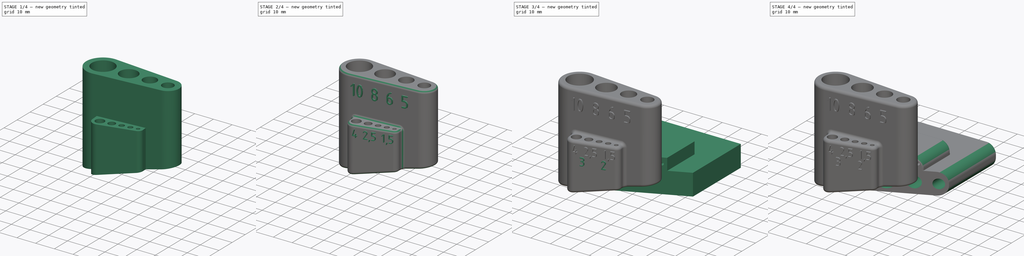
[diagram: build sequence overview — one tinted view per stage of 4, left to right]
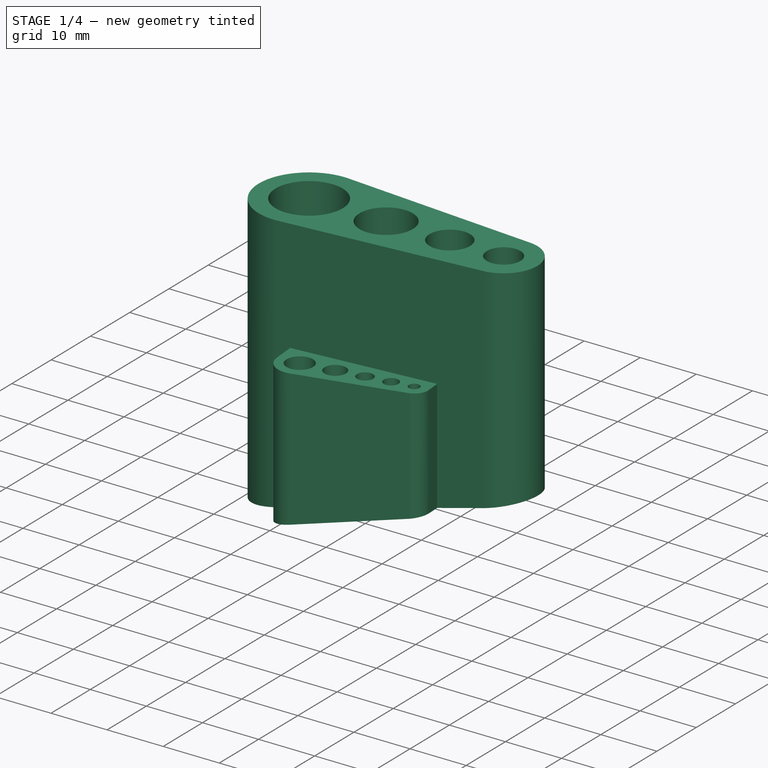
[diagram: stage 1 of 4 — iso view after this stage's code; geometry added in this stage tinted green]
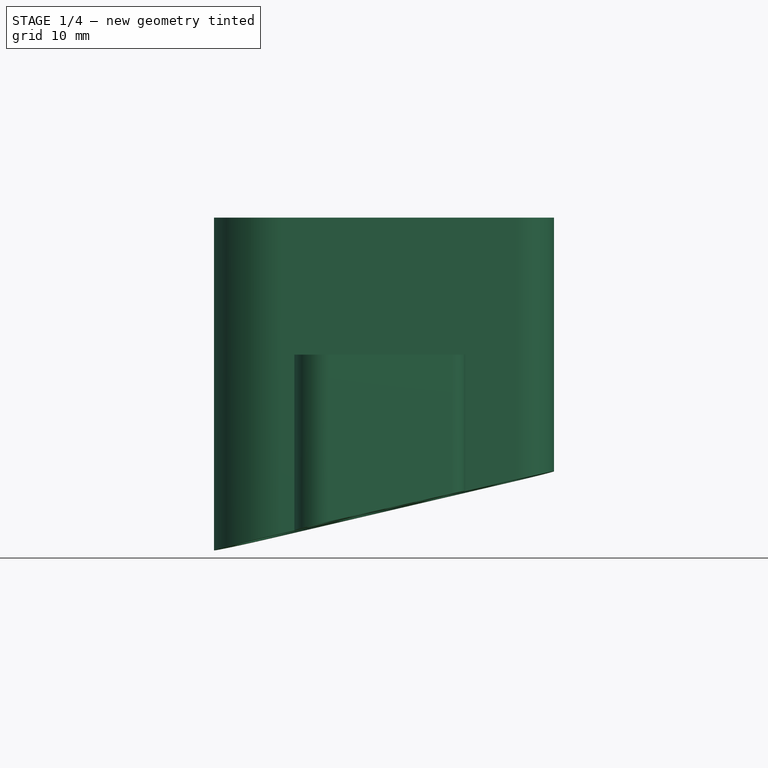
[diagram: stage 1 of 4 — front view after this stage's code; geometry added in this stage tinted green]
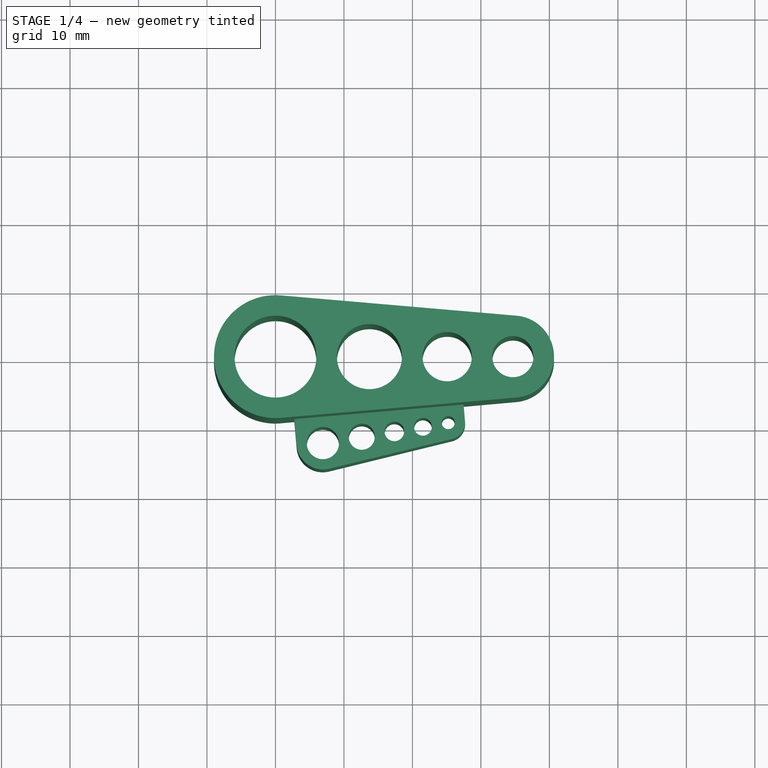
[diagram: stage 1 of 4 — top view after this stage's code; geometry added in this stage tinted green]
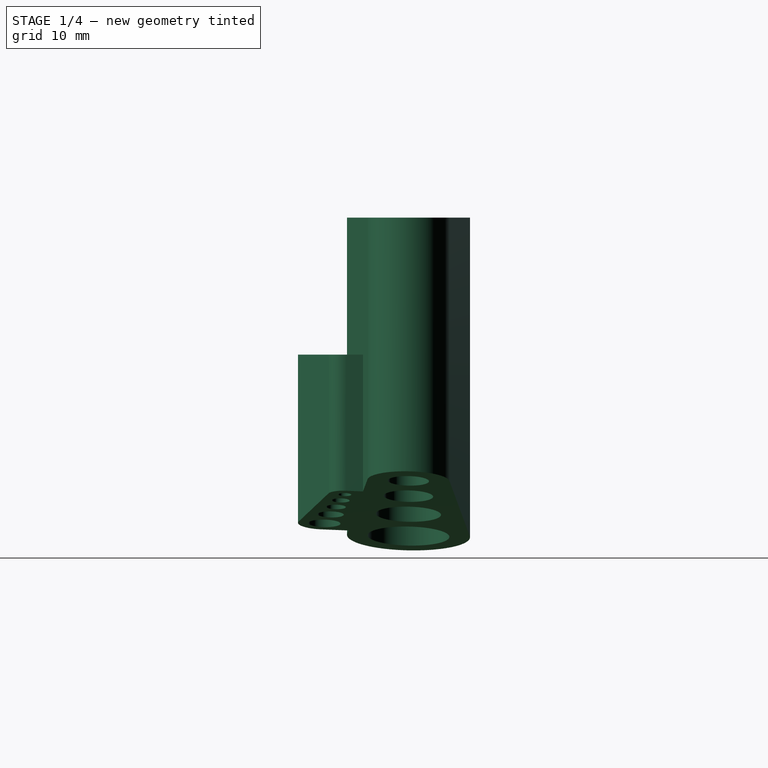
[diagram: stage 1 of 4 — right view after this stage's code; geometry added in this stage tinted green]
FCSTD DOCUMENT  (FreeCAD 1.0R39319 (Git))
Label: Allen_key_holder
License: All rights reserved
LicenseURL: https://en.wikipedia.org/wiki/All_rights_reserved
objects: Sketcher::SketchObject×7, PartDesign::Pad×7, PartDesign::Pocket×3, PartDesign::Fillet×3, Part::Part2DObjectPython×3, PartDesign::Body×2, Spreadsheet::Sheet×1
note: 58 computed .brp shape members not serialized (recipe doc carries the construction recipe); baked Part::Feature solids carry a one-line shape summary decoded from their .brp

FEATURE [PartDesign::Body] Body  label="V1"
  AllowCompound = false
  Group = -> [Sketch,Pad,Sketch001,Pad001,Sketch002,Pocket,Sketch003,Pocket001,Fillet,Fillet001]
  Origin = -> Origin
  Tip = -> Fillet001
FEATURE [Sketcher::SketchObject] Sketch004
  ArcFitTolerance = 1e-06
  AttachmentSupport = -> [XY_Plane001]
  FullyConstrained = true
  MakeInternals = false
  MapMode = 5
  expr: Constraints[4] = Spreadsheet.key9
  expr: Constraints[5] = Spreadsheet.key8
  expr: Constraints[6] = Spreadsheet.key7
  expr: Constraints[7] = Spreadsheet.key6
  sketch-geometry (13):
    g0: Circle CenterX=0 CenterY=0 CenterZ=0 NormalX=0 NormalY=0 NormalZ=1 AngleXU=0 Radius=5.975
    g1: Circle CenterX=13.725 CenterY=0 CenterZ=0 NormalX=0 NormalY=0 NormalZ=1 AngleXU=0 Radius=4.75
    g2: Circle CenterX=25.075 CenterY=0 CenterZ=0 NormalX=0 NormalY=0 NormalZ=1 AngleXU=0 Radius=3.6
    g3: Circle CenterX=34.675 CenterY=0 CenterZ=0 NormalX=0 NormalY=0 NormalZ=1 AngleXU=0 Radius=3
    g4: LineSegment [constr] StartX=5.975 StartY=0 StartZ=0 EndX=8.975 EndY=0 EndZ=0
    g5: LineSegment [constr] StartX=18.475 StartY=0 StartZ=0 EndX=21.475 EndY=0 EndZ=0
    g6: LineSegment [constr] StartX=28.675 StartY=0 StartZ=0 EndX=31.675 EndY=0 EndZ=0
    g7: ArcOfCircle CenterX=0 CenterY=0 CenterZ=0 NormalX=0 NormalY=0 NormalZ=1 AngleXU=0 Radius=8.975 StartAngle=1.48489 EndAngle=4.79829
    g8: ArcOfCircle CenterX=34.675 CenterY=0 CenterZ=0 NormalX=0 NormalY=0 NormalZ=1 AngleXU=0 Radius=6 StartAngle=4.79829 EndAngle=7.76808
    g9: LineSegment StartX=0.770025 StartY=8.94191 StartZ=0 EndX=35.1898 EndY=5.97788 EndZ=0
    g10: LineSegment StartX=0.770025 StartY=-8.94191 StartZ=0 EndX=35.1898 EndY=-5.97788 EndZ=0
    g11: LineSegment [constr] StartX=-5.975 StartY=0 StartZ=0 EndX=-8.975 EndY=0 EndZ=0
    g12: LineSegment [constr] StartX=37.675 StartY=0 StartZ=0 EndX=40.675 EndY=0 EndZ=0
  constraints (39):
    c: Coincident(g0,g-1)
    c: PointOnObject(g1,g-1)
    c: PointOnObject(g2,g-1)
    c: PointOnObject(g3,g-1)
    c: Diameter(g0) = 11.95
    c: Diameter(g1) = 9.5
    c: Diameter(g2) = 7.2
    c: Diameter(g3) = 6
    c: PointOnObject(g4,g0)
    c: PointOnObject(g4,g1)
    c: Horizontal(g4)
    c: PointOnObject(g5,g1)
    c: PointOnObject(g5,g2)
    c: Horizontal(g5)
    c: PointOnObject(g6,g2)
    c: PointOnObject(g6,g3)
    c: Horizontal(g6)
    c: Horizontal(g6,g5)
    c: Horizontal(g5,g4)
    c: Horizontal(g4,g0)
    c: Equal(g6,g5)
    c: Equal(g5,g4)
    c: Coincident(g7,g0)
    c: Coincident(g8,g3)
    c: Tangent(g10,g8) = -1.5708
    c: Tangent(g10,g7) = -1.5708
    c: Tangent(g9,g7) = 1.5708
    c: Tangent(g9,g8) = 1.5708
    c: PointOnObject(g11,g0)
    c: PointOnObject(g11,g7)
    c: Horizontal(g11)
    c: PointOnObject(g12,g3)
    c: PointOnObject(g12,g8)
    c: Horizontal(g12)
    c: Equal(g12,g6)
    c: Equal(g6,g11)
    c: Horizontal(g12,g0)
    c: Horizontal(g0,g11)
    c: DistanceX(g11,g11) = 3
FEATURE [PartDesign::Pad] Pad002
  Direction = (0,0,1)
  Length = 50
  Length2 = 10
  Profile = -> Sketch004
  ReferenceAxis = -> Sketch004 [N_Axis]
  Refine = true
  Suppressed = false
  Type = 0
FEATURE [Sketcher::SketchObject] Sketch005
  ArcFitTolerance = 1e-06
  AttachmentSupport = -> [Pad002]
  ExternalGeometry = -> [Pad002]
  FullyConstrained = true
  MakeInternals = false
  MapMode = 5
  Placement = pos=(0,0,0) rot=(1,0,0;3.14159rad)
  expr: Constraints[0] = Spreadsheet.key5
  expr: Constraints[1] = Spreadsheet.key4
  expr: Constraints[2] = Spreadsheet.key3
  expr: Constraints[3] = Spreadsheet.key2
  expr: Constraints[4] = Spreadsheet.key1
  sketch-geometry (20):
    g0: Circle CenterX=6.92877 CenterY=12.2758 CenterZ=0 NormalX=0 NormalY=0 NormalZ=1 AngleXU=0 Radius=2.35
    g1: Circle CenterX=12.604 CenterY=11.3515 CenterZ=0 NormalX=0 NormalY=0 NormalZ=1 AngleXU=0 Radius=1.9
    g2: Circle CenterX=17.3663 CenterY=10.5759 CenterZ=0 NormalX=0 NormalY=0 NormalZ=1 AngleXU=0 Radius=1.425
    g3: Circle CenterX=21.5363 CenterY=9.89677 CenterZ=0 NormalX=0 NormalY=0 NormalZ=1 AngleXU=0 Radius=1.3
    g4: Circle CenterX=25.2375 CenterY=9.29397 CenterZ=0 NormalX=0 NormalY=0 NormalZ=1 AngleXU=0 Radius=0.95
    g5: LineSegment [constr] StartX=9.24821 StartY=11.898 StartZ=0 EndX=10.7287 EndY=11.6569 EndZ=0
    g6: LineSegment [constr] StartX=14.4793 StartY=11.0461 StartZ=0 EndX=15.9598 EndY=10.805 EndZ=0
    g7: LineSegment [constr] StartX=18.7727 StartY=10.3469 StartZ=0 EndX=20.2532 EndY=10.1057 EndZ=0
    g8: LineSegment [constr] StartX=22.8194 StartY=9.6878 StartZ=0 EndX=24.2999 EndY=9.44668 EndZ=0
    g9: LineSegment [constr] StartX=6.92877 StartY=12.2758 StartZ=0 EndX=25.2375 EndY=9.29397 EndZ=0
    g10: ArcOfCircle CenterX=25.2375 CenterY=9.29397 CenterZ=0 NormalX=0 NormalY=0 NormalZ=1 AngleXU=0 Radius=2.45 StartAngle=6.19728 EndAngle=7.61699
    g11: LineSegment StartX=7.83266 StartY=16.0182 StartZ=0 EndX=25.8127 EndY=11.6755 EndZ=0
    g12: ArcOfCircle CenterX=6.92877 CenterY=12.2758 CenterZ=0 NormalX=0 NormalY=0 NormalZ=1 AngleXU=0 Radius=3.85 StartAngle=1.33381 EndAngle=3.05569
    g13: LineSegment StartX=3.09297 StartY=12.6061 StartZ=0 EndX=2.76265 EndY=8.77031 EndZ=0
    g14: LineSegment [constr] StartX=4.58744 StartY=12.4774 StartZ=0 EndX=3.09297 EndY=12.6061 EndZ=0
    g15: LineSegment [constr] StartX=6.72715 StartY=9.93446 StartZ=0 EndX=6.59845 EndY=8.44 EndZ=0
    g16: LineSegment [constr] StartX=26.184 StartY=9.21247 StartZ=0 EndX=27.6785 EndY=9.08377 EndZ=0
    g17: LineSegment [constr] StartX=25.0273 StartY=6.85301 StartZ=0 EndX=25.156 EndY=8.34748 EndZ=0
    g18: LineSegment StartX=27.6785 StartY=9.08377 StartZ=0 EndX=27.4683 EndY=6.6428 EndZ=0
    g19: LineSegment StartX=2.76265 StartY=8.77031 StartZ=0 EndX=27.4683 EndY=6.6428 EndZ=0
  constraints (61):
    c: Diameter(g0) = 4.7
    c: Diameter(g1) = 3.8
    c: Diameter(g2) = 2.85
    c: Diameter(g3) = 2.6
    c: Diameter(g4) = 1.9
    c: PointOnObject(g5,g0)
    c: PointOnObject(g5,g1)
    c: PointOnObject(g6,g1)
    c: PointOnObject(g6,g2)
    c: PointOnObject(g7,g2)
    c: PointOnObject(g7,g3)
    c: PointOnObject(g8,g3)
    c: PointOnObject(g8,g4)
    c: Equal(g8,g7)
    c: Equal(g7,g6)
    c: Equal(g6,g5)
    c: Coincident(g9,g0)
    c: Coincident(g9,g4)
    c: PointOnObject(g3,g9)
    c: PointOnObject(g2,g9)
    c: PointOnObject(g1,g9)
    c: PointOnObject(g5,g9)
    c: PointOnObject(g6,g9)
    c: PointOnObject(g7,g9)
    c: PointOnObject(g8,g9)
    c: PointOnObject(g8,g9)
    c: PointOnObject(g7,g9)
    c: PointOnObject(g6,g9)
    c: PointOnObject(g5,g9)
    c: Coincident(g10,g4)
    c: Tangent(g11,g10) = 1.5708
    c: Coincident(g12,g0)
    c: Tangent(g12,g11) = 1.5708
    c: Tangent(g13,g12) = -1.5708
    c: PointOnObject(g14,g0)
    c: Coincident(g14,g12)
    c: Equal(g14,g5)
    c: PointOnObject(g15,g0)
    c: PointOnObject(g15,g-3)
    c: Perpendicular(g0,g15)
    c: Perpendicular(g0,g14)
    c: PointOnObject(g16,g4)
    c: Perpendicular(g4,g16)
    c: Coincident(g10,g16)
    c: Equal(g15,g14)
    c: Equal(g14,g16)
    c: Perpendicular(g15,g-3)
    c: PointOnObject(g17,g-3)
    c: PointOnObject(g17,g4)
    c: Perpendicular(g4,g17)
    c: Perpendicular(g-3,g17)
    c: Equal(g17,g16)
    c: PointOnObject(g18,g-3)
    c: Tangent(g18,g10) = 1.5708
    c: Distance(g14) = 1.5
    c: Perpendicular(g18,g-3)
    c: Perpendicular(g13,g19)
    c: Coincident(g19,g18)
    c: Coincident(g19,g13)
    c: PointOnObject(g13,g-3)
    c: Distance(g13,g-3) = 2
FEATURE [PartDesign::Pad] Pad003
  BaseFeature = -> Pad002
  Direction = (0,0,-1)
  Length = 30
  Length2 = 10
  Profile = -> Sketch005
  ReferenceAxis = -> Sketch005 [N_Axis]
  Refine = true
  Reversed = true
  Suppressed = false
  Type = 0
FEATURE [Sketcher::SketchObject] Sketch006
  ArcFitTolerance = 1e-06
  AttachmentSupport = -> [Pad003]
  FullyConstrained = true
  MakeInternals = false
  MapMode = 5
  Placement = pos=(0.770025,8.94191,0) rot=(0.030376,0.70678,0.70678;3.08086rad)
  sketch-geometry (3):
    g0: LineSegment StartX=15 StartY=0 StartZ=0 EndX=-45 EndY=14 EndZ=0
    g1: LineSegment StartX=-45 StartY=14 StartZ=0 EndX=-45 EndY=0 EndZ=0
    g2: LineSegment StartX=-45 StartY=0 StartZ=0 EndX=15 EndY=0 EndZ=0
  constraints (9):
    c: PointOnObject(g0,g-1)
    c: Coincident(g1,g0)
    c: PointOnObject(g1,g-1)
    c: Vertical(g1)
    c: Coincident(g2,g1)
    c: Coincident(g2,g0)
    c: DistanceX(g-1,g0) = 15
    c: DistanceX(g2,g2) = 60
    c: DistanceY(g1,g1) = 14
FEATURE [PartDesign::Pocket] Pocket002
  BaseFeature = -> Pad003
  Direction = (-0.0857967,-0.996313,0)
  Length = 30
  Length2 = 5
  Profile = -> Sketch006
  ReferenceAxis = -> Sketch006 [N_Axis]
  Refine = true
  Suppressed = false
  Type = 0
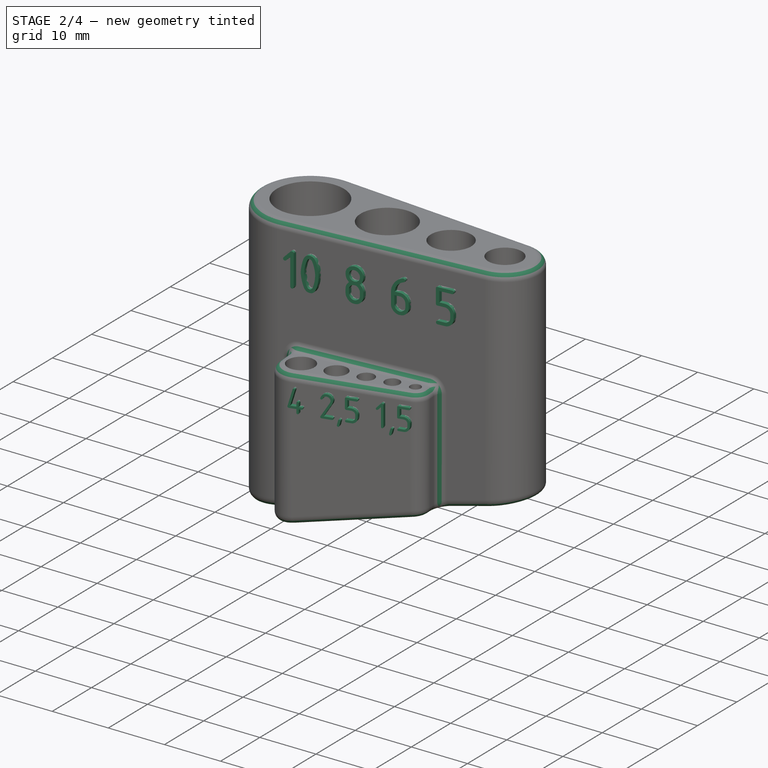
[diagram: stage 2 of 4 — iso view after this stage's code; geometry added in this stage tinted green]
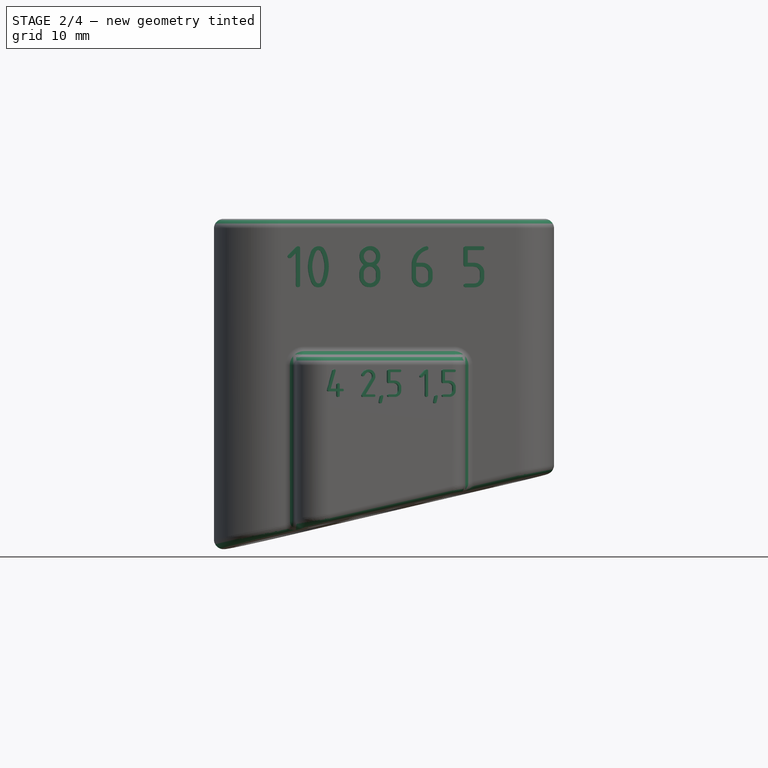
[diagram: stage 2 of 4 — front view after this stage's code; geometry added in this stage tinted green]
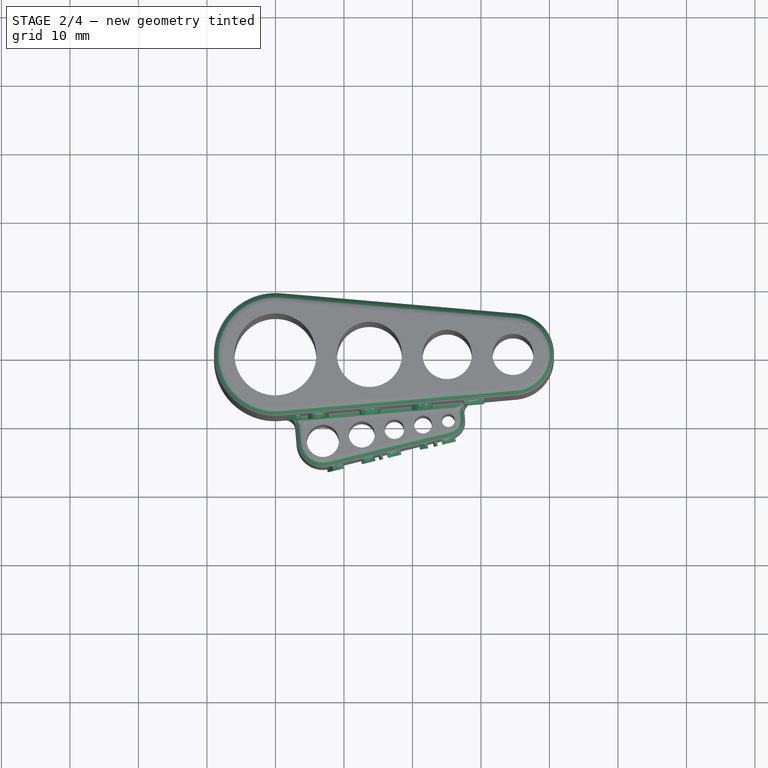
[diagram: stage 2 of 4 — top view after this stage's code; geometry added in this stage tinted green]
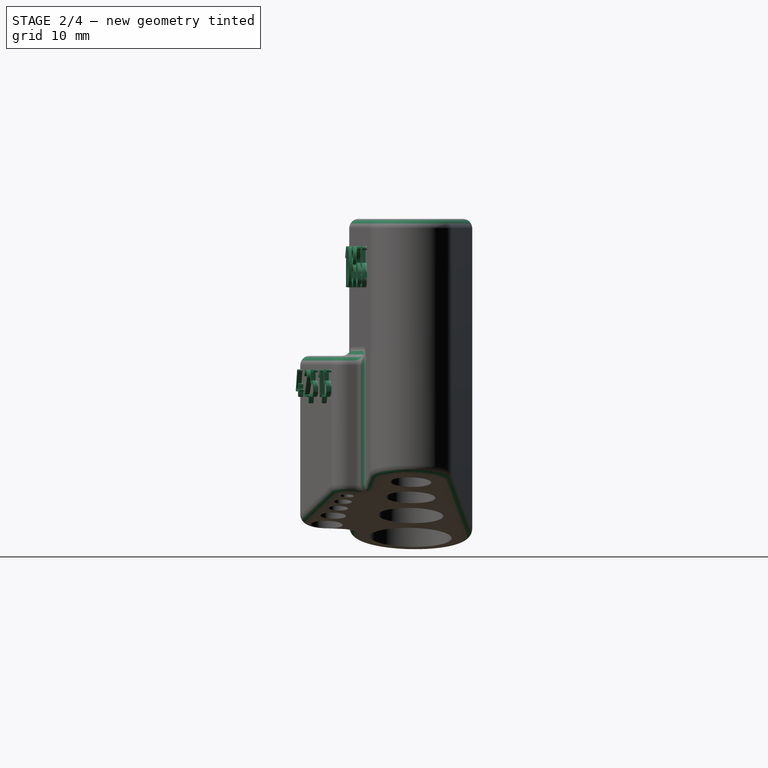
[diagram: stage 2 of 4 — right view after this stage's code; geometry added in this stage tinted green]
FEATURE [PartDesign::Fillet] Fillet002
  Base = -> Pocket002 [Edge23,Edge42,Edge11,Edge1,Edge25,Edge24,Edge28]
  BaseFeature = -> Pocket002
  Radius = 1.4
  Refine = true
  SupportTransform = false
  Suppressed = false
  UseAllEdges = false
FEATURE [Part::Part2DObjectPython] ShapeString  # Draft 2D object (typed FeaturePython)
  AttachmentOffset = pos=(1,40,0) rot=(0,0,1;0rad)
  AttachmentSupport = -> [Fillet002]
  FontFile = <userpath>/Downloads/osifont-master/osifont-master/osifont.ttf
  Fuse = false
  Justification = 6
  JustificationReference = 0
  KeepLeftMargin = false
  MakeFace = true
  MapMode = 5
  ObliqueAngle = 0
  Placement = pos=(1.76634,-8.85611,40) rot=(0.998158,0.042898,0.042898;1.57264rad)
  ScaleToSize = true
  Size = 6
  String = 10 8 6 5
  Tracking = 0
FEATURE [PartDesign::Pad] Pad004
  BaseFeature = -> Fillet002
  Direction = (0.0857967,-0.996313,0)
  Length = 0.7
  Length2 = 0.5
  Profile = -> ShapeString
  ReferenceAxis = -> ShapeString [N_Axis]
  Refine = true
  Suppressed = false
  Type = 4
FEATURE [Part::Part2DObjectPython] ShapeString001  # Draft 2D object (typed FeaturePython)
  AttachmentOffset = pos=(3.5,24,0) rot=(0,0,1;0rad)
  AttachmentSupport = -> [Pocket002]
  FontFile = <userpath>/Downloads/osifont-master/osifont-master/osifont.ttf
  Fuse = false
  Justification = 6
  JustificationReference = 0
  KeepLeftMargin = false
  MakeFace = true
  MapMode = 5
  ObliqueAngle = 0
  Placement = pos=(7.4895,-16.1011,24) rot=(0.986121,0.1174,0.1174;1.58477rad)
  ScaleToSize = true
  Size = 4
  String = 4 2,5 1,5
  Tracking = 0
FEATURE [PartDesign::Pad] Pad005
  BaseFeature = -> Pad004
  Direction = (0.234777,-0.972049,0)
  Length = 0.7
  Length2 = 0.5
  Profile = -> ShapeString001
  ReferenceAxis = -> ShapeString001 [N_Axis]
  Refine = true
  Suppressed = false
  Type = 4
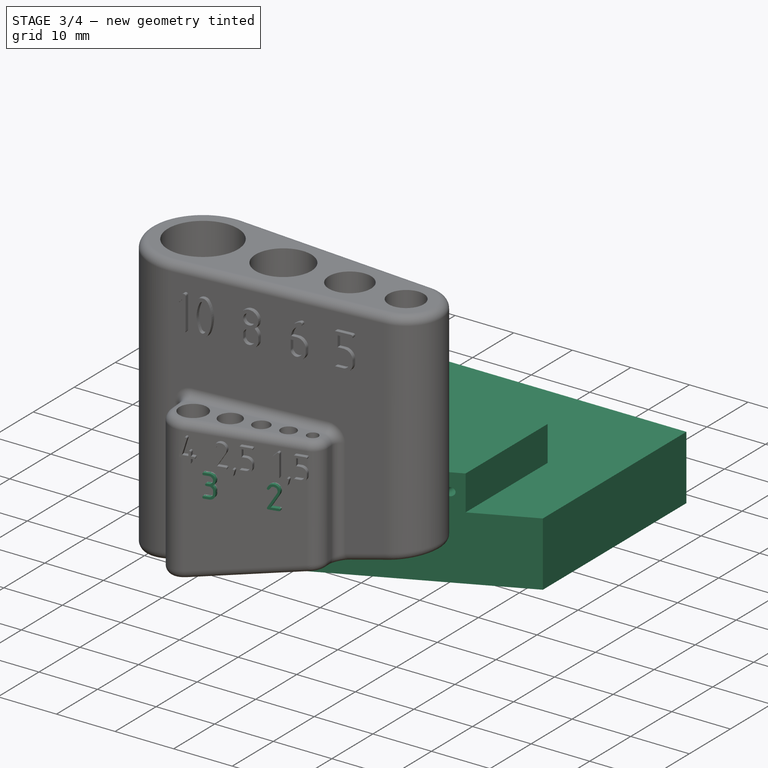
[diagram: stage 3 of 4 — iso view after this stage's code; geometry added in this stage tinted green]
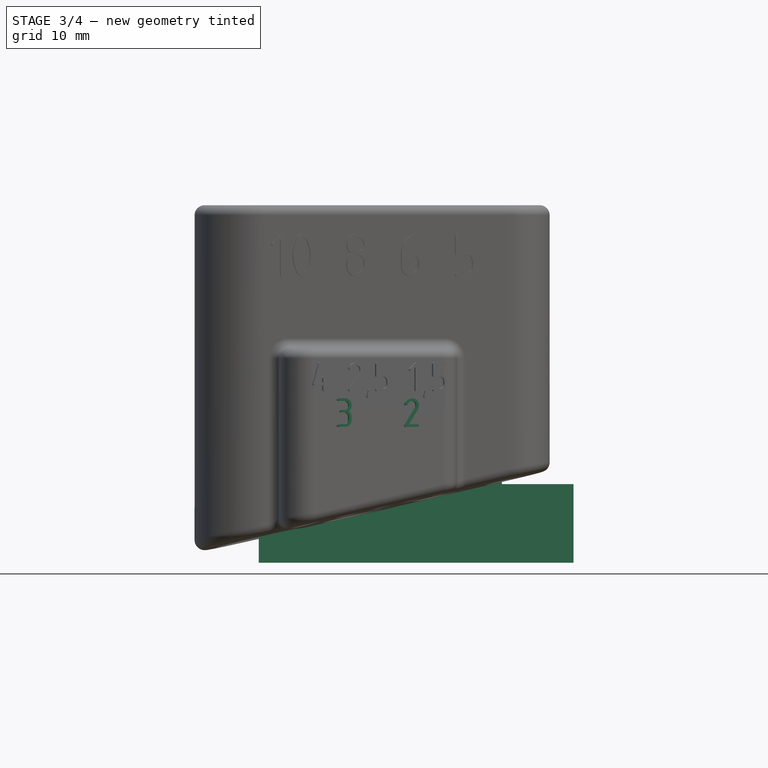
[diagram: stage 3 of 4 — front view after this stage's code; geometry added in this stage tinted green]
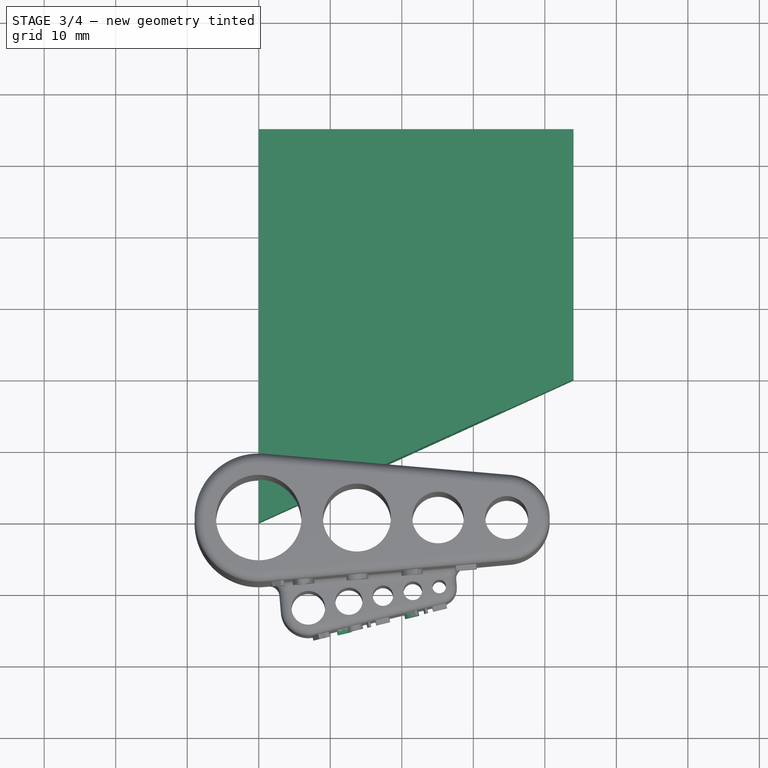
[diagram: stage 3 of 4 — top view after this stage's code; geometry added in this stage tinted green]
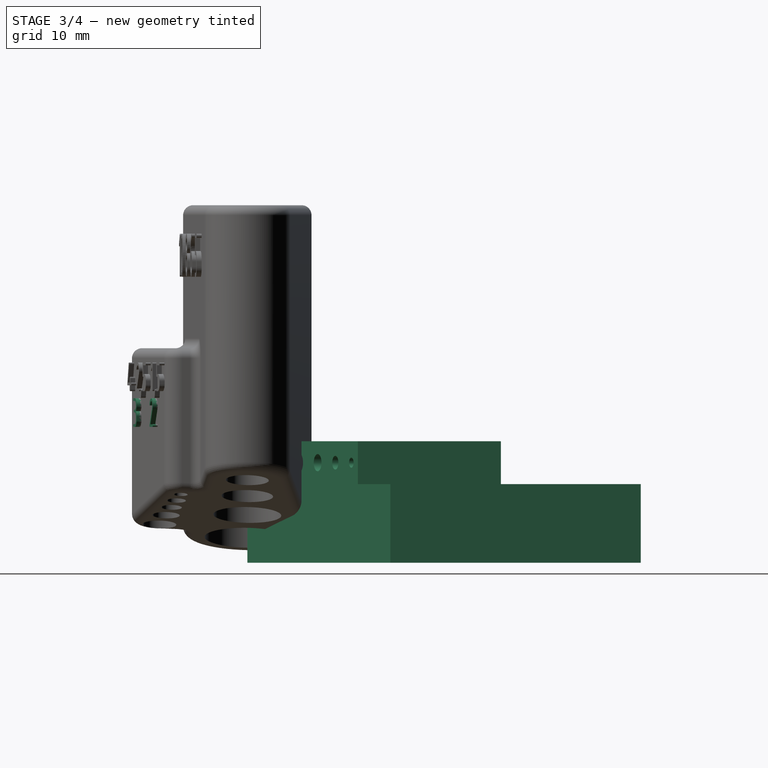
[diagram: stage 3 of 4 — right view after this stage's code; geometry added in this stage tinted green]
FEATURE [Spreadsheet::Sheet] Spreadsheet
  cells = A1='key1; B1(key1)=1.9; A2='key2; B2(key2)=2.6; A3='key3; B3(key3)=2.85; A4='key4; B4(key4)=3.8; A5='key5; B5(key5)=4.7; A6='key6; B6(key6)=6; A7='key7; B7(key7)=7.2; A8='key8; B8(key8)=9.5; A9='key9; B9(key9)=11.95
FEATURE [Sketcher::SketchObject] Sketch
  ArcFitTolerance = 1e-06
  AttachmentSupport = -> [XY_Plane]
  FullyConstrained = true
  MakeInternals = false
  MapMode = 5
  sketch-geometry (4):
    g0: LineSegment StartX=0 StartY=0 StartZ=0 EndX=0 EndY=55 EndZ=0
    g1: LineSegment StartX=0 StartY=0 StartZ=0 EndX=44 EndY=20 EndZ=0
    g2: LineSegment StartX=44 StartY=20 StartZ=0 EndX=44 EndY=55 EndZ=0
    g3: LineSegment StartX=44 StartY=55 StartZ=0 EndX=0 EndY=55 EndZ=0
  constraints (11):
    c: Coincident(g0,g-1)
    c: PointOnObject(g0,g-2)
    c: Coincident(g1,g0)
    c: Coincident(g2,g1)
    c: Vertical(g2)
    c: Coincident(g3,g2)
    c: Coincident(g3,g0)
    c: Horizontal(g3)
    c: DistanceX(g3,g3) = 44
    c: DistanceY(g-1,g1) = 20
    c: DistanceY(g0,g0) = 55
FEATURE [PartDesign::Pad] Pad
  Direction = (0,0,1)
  Length = 11
  Length2 = 10
  Profile = -> Sketch
  ReferenceAxis = -> Sketch [N_Axis]
  Refine = true
  Suppressed = false
  Type = 0
FEATURE [Sketcher::SketchObject] Sketch001
  ArcFitTolerance = 1e-06
  AttachmentSupport = -> [Pad]
  ExternalGeometry = -> [Pad]
  FullyConstrained = true
  MakeInternals = false
  MapMode = 5
  Placement = pos=(0,0,11) rot=(0,0,1;0rad)
  sketch-geometry (4):
    g0: LineSegment StartX=6 StartY=2.72727 StartZ=0 EndX=34 EndY=15.4545 EndZ=0
    g1: LineSegment StartX=6 StartY=2.72727 StartZ=0 EndX=6 EndY=35.4545 EndZ=0
    g2: LineSegment StartX=34 StartY=15.4545 StartZ=0 EndX=34 EndY=35.4545 EndZ=0
    g3: LineSegment StartX=34 StartY=35.4545 StartZ=0 EndX=6 EndY=35.4545 EndZ=0
  constraints (12):
    c: PointOnObject(g0,g-3)
    c: PointOnObject(g0,g-3)
    c: Coincident(g1,g0)
    c: Vertical(g1)
    c: Coincident(g2,g0)
    c: Vertical(g2)
    c: Coincident(g3,g2)
    c: Coincident(g3,g1)
    c: Horizontal(g3)
    c: DistanceX(g-1,g0) = 6
    c: DistanceX(g3,g3) = 28
    c: DistanceY(g2,g2) = 20
FEATURE [PartDesign::Pad] Pad001
  BaseFeature = -> Pad
  Direction = (0,0,1)
  Length = 6
  Length2 = 10
  Profile = -> Sketch001
  ReferenceAxis = -> Sketch001 [N_Axis]
  Refine = true
  Suppressed = false
  Type = 0
FEATURE [Sketcher::SketchObject] Sketch002
  ArcFitTolerance = 1e-06
  AttachmentSupport = -> [Pad001]
  ExternalGeometry = -> [Pad001]
  FullyConstrained = true
  MakeInternals = false
  MapMode = 5
  Placement = pos=(0,35.4545,0) rot=(0,0.707107,0.707107;3.14159rad)
  sketch-geometry (10):
    g0: Circle CenterX=-32 CenterY=14 CenterZ=0 NormalX=0 NormalY=0 NormalZ=1 AngleXU=0 Radius=0.7
    g1: Circle CenterX=-27.0625 CenterY=14 CenterZ=0 NormalX=0 NormalY=0 NormalZ=1 AngleXU=0 Radius=0.95
    g2: Circle CenterX=-21.625 CenterY=14 CenterZ=0 NormalX=0 NormalY=0 NormalZ=1 AngleXU=0 Radius=1.2
    g3: Circle CenterX=-15.6875 CenterY=14 CenterZ=0 NormalX=0 NormalY=0 NormalZ=1 AngleXU=0 Radius=1.45
    g4: Circle CenterX=-9 CenterY=14 CenterZ=0 NormalX=0 NormalY=0 NormalZ=1 AngleXU=0 Radius=1.95
    g5: LineSegment [constr] StartX=-31.3 StartY=14 StartZ=0 EndX=-28.0125 EndY=14 EndZ=0
    g6: LineSegment [constr] StartX=-26.1125 StartY=14 StartZ=0 EndX=-22.825 EndY=14 EndZ=0
    g7: LineSegment [constr] StartX=-20.425 StartY=14 StartZ=0 EndX=-17.1375 EndY=14 EndZ=0
    g8: LineSegment [constr] StartX=-10.95 StartY=14 StartZ=0 EndX=-14.2375 EndY=14 EndZ=0
    g9: LineSegment [constr] StartX=-6 StartY=14 StartZ=0 EndX=-9 EndY=14 EndZ=0
  constraints (33):
    c: Horizontal(g4,g3)
    c: Horizontal(g3,g2)
    c: Horizontal(g2,g1)
    c: Horizontal(g1,g0)
    c: Diameter(g0) = 1.4
    c: Diameter(g1) = 1.9
    c: Diameter(g2) = 2.4
    c: Diameter(g3) = 2.9
    c: Diameter(g4) = 3.9
    c: DistanceX(g4,g-3) = 3
    c: PointOnObject(g5,g0)
    c: PointOnObject(g5,g1)
    c: Horizontal(g5)
    c: Horizontal(g5,g1)
    c: PointOnObject(g6,g1)
    c: PointOnObject(g6,g2)
    c: Horizontal(g6)
    c: PointOnObject(g7,g2)
    c: PointOnObject(g7,g3)
    c: Horizontal(g7)
    c: PointOnObject(g8,g4)
    c: PointOnObject(g8,g3)
    c: Horizontal(g8)
    c: Horizontal(g5,g6)
    c: Horizontal(g6,g7)
    c: Horizontal(g7,g8)
    c: Equal(g8,g7)
    c: Equal(g7,g6)
    c: Equal(g6,g5)
    c: DistanceX(g-4,g0) = 2
    c: Symmetric(g-3,g-3,g9)
    c: Coincident(g9,g4)
    c: Horizontal(g9)
FEATURE [PartDesign::Pocket] Pocket
  BaseFeature = -> Pad001
  Direction = (0,-1,2e-16)
  Length = 50
  Length2 = 5
  Profile = -> Sketch002
  ReferenceAxis = -> Sketch002 [N_Axis]
  Refine = true
  Suppressed = false
  Type = 0
FEATURE [Part::Part2DObjectPython] ShapeString002  # Draft 2D object (typed FeaturePython)
  AttachmentOffset = pos=(7,19,0) rot=(0,0,1;0rad)
  AttachmentSupport = -> [Pad005]
  FontFile = <userpath>/Downloads/osifont-master/osifont-master/osifont.ttf
  Fuse = false
  Justification = 6
  JustificationReference = 0
  KeepLeftMargin = false
  MakeFace = true
  MapMode = 5
  ObliqueAngle = 0
  Placement = pos=(10.8917,-15.2794,19) rot=(0.986121,0.1174,0.1174;1.58477rad)
  ScaleToSize = true
  Size = 4
  String = 3   2
  Tracking = 0
FEATURE [PartDesign::Pad] Pad006
  BaseFeature = -> Pad005
  Direction = (0.234777,-0.972049,0)
  Length = 0.7
  Length2 = 0.5
  Profile = -> ShapeString002
  ReferenceAxis = -> ShapeString002 [N_Axis]
  Refine = true
  Suppressed = false
  Type = 4
FEATURE [PartDesign::Body] Body001  label="V2"
  AllowCompound = false
  Group = -> [Sketch004,Pad002,Sketch005,Pad003,Sketch006,Pocket002,Fillet002,ShapeString,Pad004,ShapeString001,Pad005,ShapeString002,Pad006]
  Origin = -> Origin001
  Tip = -> Pad006
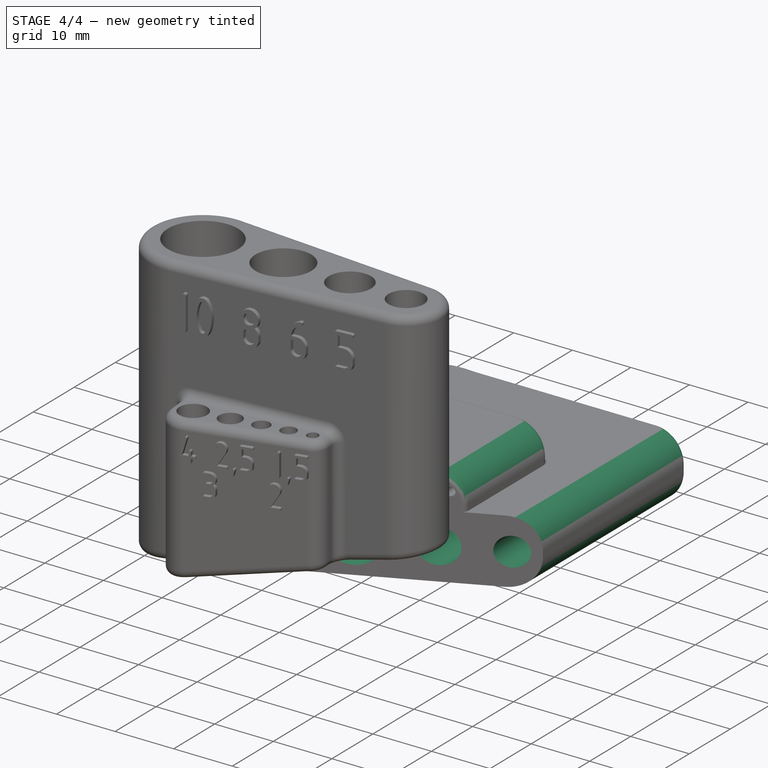
[diagram: stage 4 of 4 — iso view after this stage's code; geometry added in this stage tinted green]
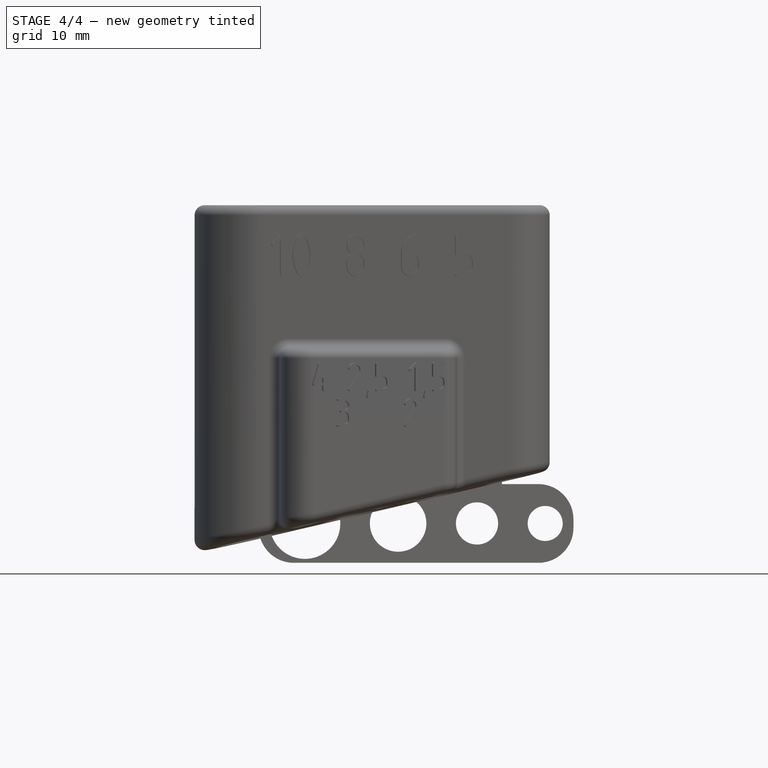
[diagram: stage 4 of 4 — front view after this stage's code; geometry added in this stage tinted green]
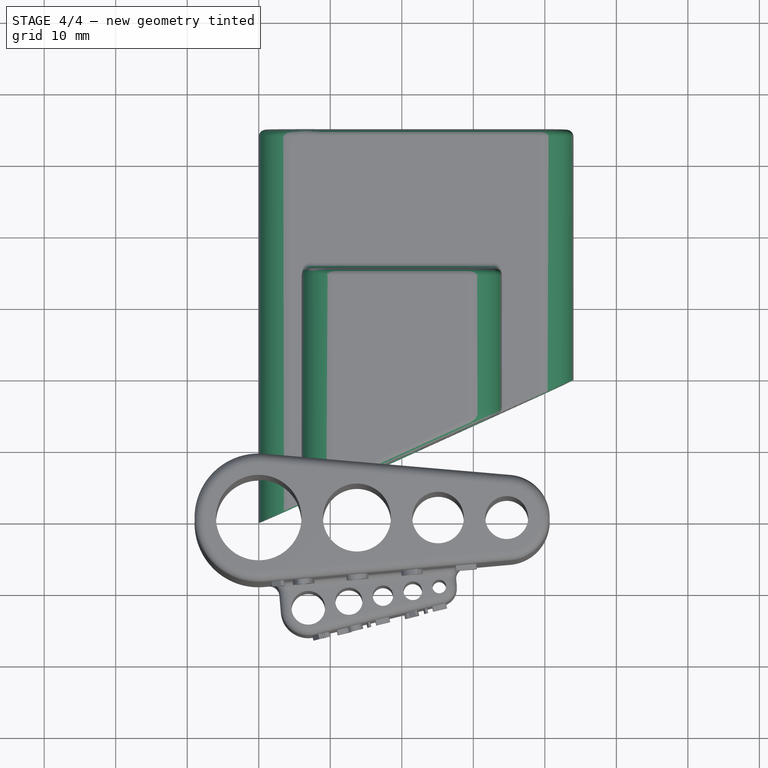
[diagram: stage 4 of 4 — top view after this stage's code; geometry added in this stage tinted green]
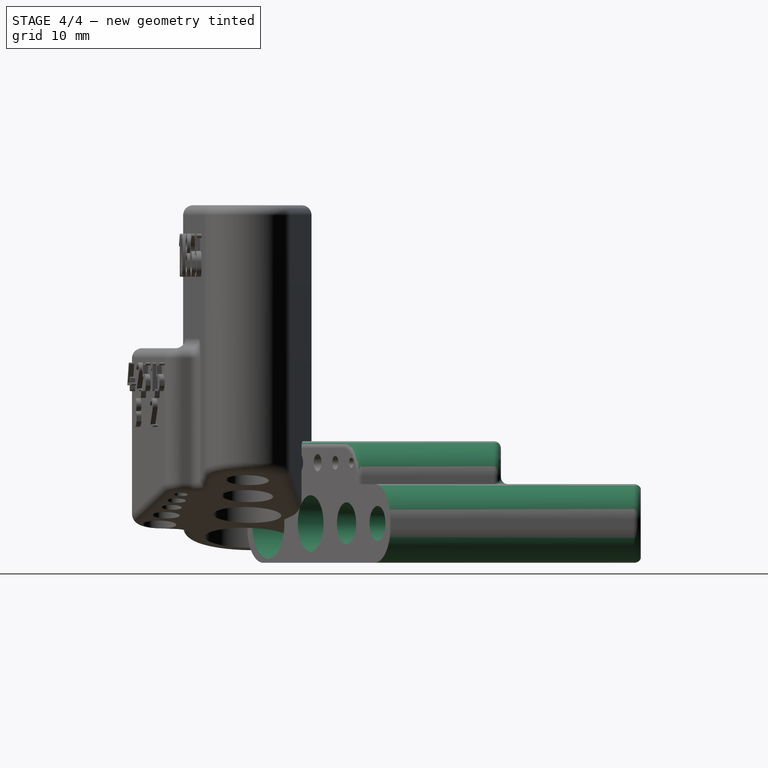
[diagram: stage 4 of 4 — right view after this stage's code; geometry added in this stage tinted green]
FEATURE [Sketcher::SketchObject] Sketch003
  ArcFitTolerance = 1e-06
  AttachmentSupport = -> [Pocket]
  ExternalGeometry = -> [Pocket]
  FullyConstrained = true
  MakeInternals = false
  MapMode = 5
  Placement = pos=(0,55,0) rot=(0,0.707107,0.707107;3.14159rad)
  sketch-geometry (9):
    g0: Circle CenterX=-40.05 CenterY=5.5 CenterZ=0 NormalX=0 NormalY=0 NormalZ=1 AngleXU=0 Radius=2.45
    g1: Circle CenterX=-30.5167 CenterY=5.5 CenterZ=0 NormalX=0 NormalY=0 NormalZ=1 AngleXU=0 Radius=2.95
    g2: Circle CenterX=-19.4833 CenterY=5.5 CenterZ=0 NormalX=0 NormalY=0 NormalZ=1 AngleXU=0 Radius=3.95
    g3: Circle CenterX=-6.45 CenterY=5.5 CenterZ=0 NormalX=0 NormalY=0 NormalZ=1 AngleXU=0 Radius=4.95
    g4: LineSegment [constr] StartX=-37.6 StartY=5.5 StartZ=0 EndX=-33.4667 EndY=5.5 EndZ=0
    g5: LineSegment [constr] StartX=-27.5667 StartY=5.5 StartZ=0 EndX=-23.4333 EndY=5.5 EndZ=0
    g6: LineSegment [constr] StartX=-15.5333 StartY=5.5 StartZ=0 EndX=-11.4 EndY=5.5 EndZ=0
    g7: LineSegment [constr] StartX=0 StartY=5.5 StartZ=0 EndX=-1.5 EndY=5.5 EndZ=0
    g8: LineSegment [constr] StartX=-44 StartY=5.5 StartZ=0 EndX=-42.5 EndY=5.5 EndZ=0
  constraints (30):
    c: Horizontal(g3,g2)
    c: Horizontal(g2,g1)
    c: Horizontal(g1,g0)
    c: PointOnObject(g4,g0)
    c: PointOnObject(g4,g1)
    c: Horizontal(g4)
    c: PointOnObject(g5,g1)
    c: PointOnObject(g5,g2)
    c: Horizontal(g5)
    c: PointOnObject(g6,g2)
    c: PointOnObject(g6,g3)
    c: Horizontal(g6)
    c: Horizontal(g3,g6)
    c: Horizontal(g6,g5)
    c: Horizontal(g5,g4)
    c: Diameter(g0) = 4.9
    c: Diameter(g1) = 5.9
    c: Diameter(g2) = 7.9
    c: Diameter(g3) = 9.9
    c: Symmetric(g-3,g-3,g7)
    c: PointOnObject(g7,g3)
    c: Horizontal(g7)
    c: DistanceX(g7,g7) = 1.5
    c: Symmetric(g-4,g-4,g8)
    c: PointOnObject(g8,g0)
    c: Horizontal(g8)
    c: DistanceX(g8,g8) = 1.5
    c: Horizontal(g3,g7)
    c: Equal(g4,g5)
    c: Equal(g5,g6)
FEATURE [PartDesign::Pocket] Pocket001
  BaseFeature = -> Pocket
  Direction = (0,-1,2e-16)
  Length = 60
  Length2 = 5
  Profile = -> Sketch003
  ReferenceAxis = -> Sketch003 [N_Axis]
  Refine = true
  Suppressed = false
  Type = 0
FEATURE [PartDesign::Fillet] Fillet
  Base = -> Pocket001 [Edge29,Edge4,Edge3,Edge28,Edge34,Edge35]
  BaseFeature = -> Pocket001
  Radius = 4.9
  Refine = true
  SupportTransform = false
  Suppressed = false
  UseAllEdges = false
FEATURE [PartDesign::Fillet] Fillet001
  Base = -> Fillet [Edge52,Edge35,Edge14,Edge44]
  BaseFeature = -> Fillet
  Radius = 1
  Refine = true
  SupportTransform = false
  Suppressed = false
  UseAllEdges = false
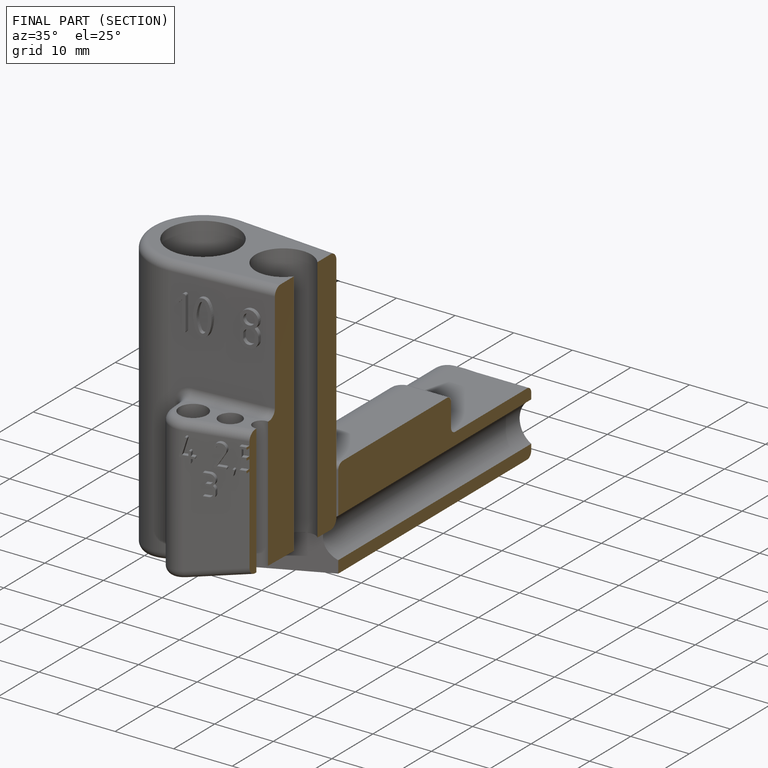
[diagram: finished part — half-section view (interior)]
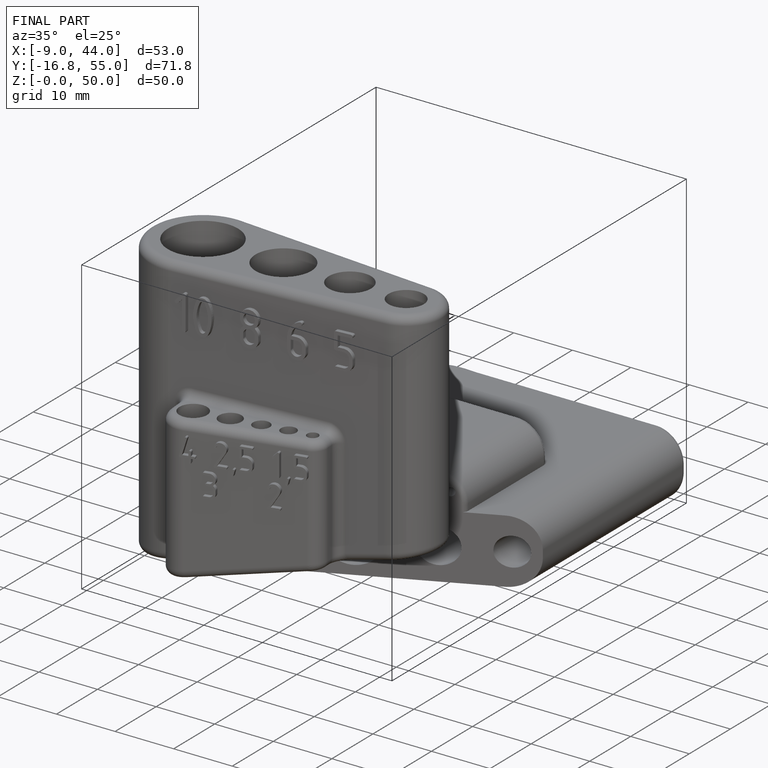
[diagram: finished part — iso view with bounding-box wireframe]
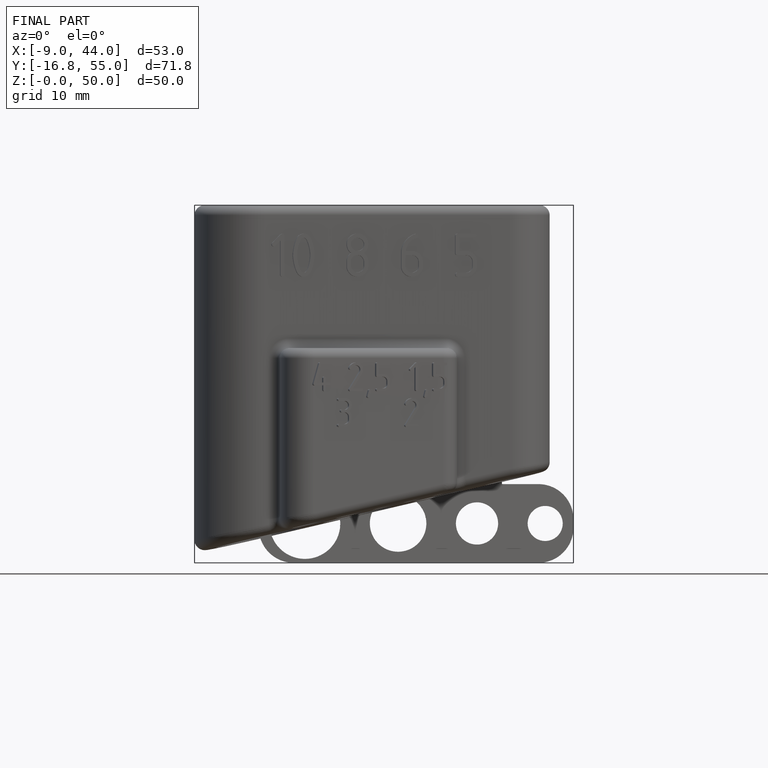
[diagram: finished part — front view with bounding-box wireframe]
